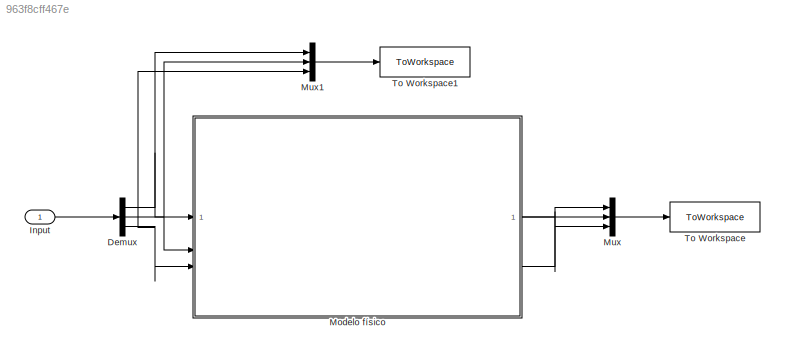
MODEL slx_963f8cff467e
KIND model
CONFIG AbsTol = auto
CONFIG EnableMultiTasking = off
CONFIG FixedStep = auto
CONFIG MaxStep = auto
CONFIG MinStep = auto
CONFIG RelTol = 1e-3
CONFIG SampleTimeConstraint = Unconstrained
CONFIG SolverName = VariableStepAuto
CONFIG StartTime = 0.0
CONFIG StopTime = sim_end_time
BLOCK [Demux] Demux
  Outputs = 3
BLOCK [Inport] Input
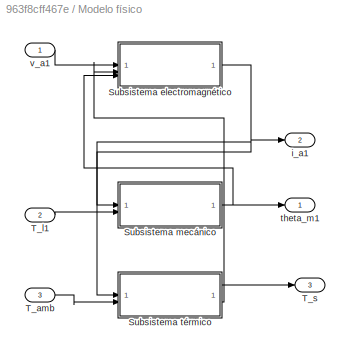
BLOCK [SubSystem] Modelo físico
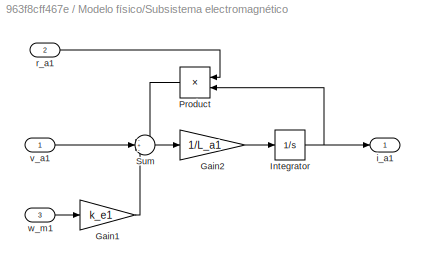
BLOCK [SubSystem] Modelo físico/Subsistema electromagnético
BLOCK [Gain] Modelo físico/Subsistema electromagnético/Gain1
  Gain = k_e1
BLOCK [Gain] Modelo físico/Subsistema electromagnético/Gain2
  Gain = 1/L_a1
BLOCK [Integrator] Modelo físico/Subsistema electromagnético/Integrator
BLOCK [Product] Modelo físico/Subsistema electromagnético/Product
  NameLocation = top
BLOCK [Sum] Modelo físico/Subsistema electromagnético/Sum
  Inputs = -+-
BLOCK [Outport] Modelo físico/Subsistema electromagnético/i_a1
BLOCK [Inport] Modelo físico/Subsistema electromagnético/r_a1
  Port = 2
BLOCK [Inport] Modelo físico/Subsistema electromagnético/v_a1
BLOCK [Inport] Modelo físico/Subsistema electromagnético/w_m1
  Port = 3
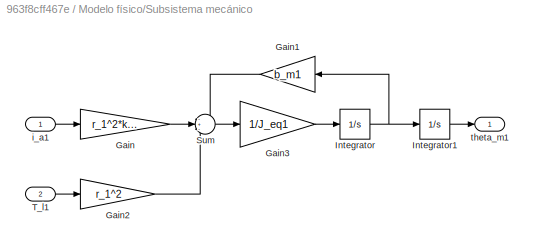
BLOCK [SubSystem] Modelo físico/Subsistema mecánico
BLOCK [Gain] Modelo físico/Subsistema mecánico/Gain
  Gain = r_1^2*k_t1
BLOCK [Gain] Modelo físico/Subsistema mecánico/Gain1
  Gain = b_m1
  NameLocation = top
BLOCK [Gain] Modelo físico/Subsistema mecánico/Gain2
  Gain = r_1^2
BLOCK [Gain] Modelo físico/Subsistema mecánico/Gain3
  Gain = 1/J_eq1
BLOCK [Integrator] Modelo físico/Subsistema mecánico/Integrator
BLOCK [Integrator] Modelo físico/Subsistema mecánico/Integrator1
  InitialCondition = theta_m1_0
BLOCK [Sum] Modelo físico/Subsistema mecánico/Sum
  Inputs = -+-
BLOCK [Inport] Modelo físico/Subsistema mecánico/T_l1
  Port = 2
BLOCK [Inport] Modelo físico/Subsistema mecánico/i_a1
BLOCK [Outport] Modelo físico/Subsistema mecánico/theta_m1
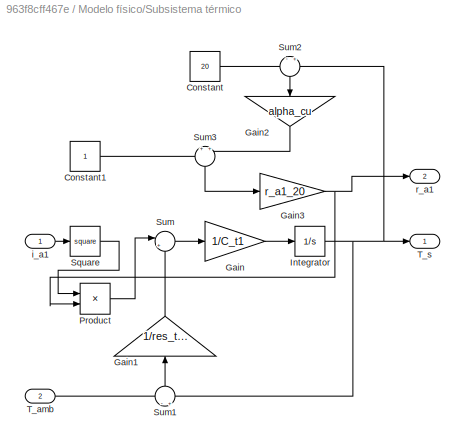
BLOCK [SubSystem] Modelo físico/Subsistema térmico
BLOCK [Constant] Modelo físico/Subsistema térmico/Constant
  Value = 20
BLOCK [Constant] Modelo físico/Subsistema térmico/Constant1
BLOCK [Gain] Modelo físico/Subsistema térmico/Gain
  Gain = 1/C_t1
BLOCK [Gain] Modelo físico/Subsistema térmico/Gain1
  Gain = 1/res_term_1
  NameLocation = right
BLOCK [Gain] Modelo físico/Subsistema térmico/Gain2
  Gain = alpha_cu
  NameLocation = left
BLOCK [Gain] Modelo físico/Subsistema térmico/Gain3
  Gain = r_a1_20
BLOCK [Integrator] Modelo físico/Subsistema térmico/Integrator
BLOCK [Product] Modelo físico/Subsistema térmico/Product
BLOCK [Math] Modelo físico/Subsistema térmico/Square
  Operator = square
BLOCK [Sum] Modelo físico/Subsistema térmico/Sum
  Inputs = |+-
BLOCK [Sum] Modelo físico/Subsistema térmico/Sum1
  Inputs = -|+
  NameLocation = right
BLOCK [Sum] Modelo físico/Subsistema térmico/Sum2
  Inputs = -|+
  NameLocation = left
BLOCK [Sum] Modelo físico/Subsistema térmico/Sum3
  Inputs = +|+
  NameLocation = left
BLOCK [Inport] Modelo físico/Subsistema térmico/T_amb
  Port = 2
BLOCK [Outport] Modelo físico/Subsistema térmico/T_s
BLOCK [Inport] Modelo físico/Subsistema térmico/i_a1
BLOCK [Outport] Modelo físico/Subsistema térmico/r_a1
  Port = 2
BLOCK [Inport] Modelo físico/T_amb
  Port = 3
BLOCK [Inport] Modelo físico/T_l1
  Port = 2
BLOCK [Outport] Modelo físico/T_s
  Port = 3
BLOCK [Outport] Modelo físico/i_a1
  Port = 2
BLOCK [Outport] Modelo físico/theta_m1
BLOCK [Inport] Modelo físico/v_a1
BLOCK [Mux] Mux
  DisplayOption = bar
  Inputs = 3
BLOCK [Mux] Mux1
  DisplayOption = bar
  Inputs = 3
BLOCK [ToWorkspace] To Workspace
  FixptAsFi = on
  MaxDataPoints = inf
  SampleTime = -1
  SaveFormat = Timeseries
  VariableName = simulationOut
BLOCK [ToWorkspace] To Workspace1
  FixptAsFi = on
  MaxDataPoints = inf
  SampleTime = -1
  SaveFormat = Timeseries
  VariableName = simulationIn
NET Demux:1 -> Modelo físico:1, Mux1:1
NET Demux:2 -> Modelo físico:2, Mux1:2
NET Demux:3 -> Modelo físico:3, Mux1:3
LINE Input:1 -> Demux:1
LINE Modelo físico/Subsistema electromagnético/Gain1:1 -> Modelo físico/Subsistema electromagnético/Sum:3
LINE Modelo físico/Subsistema electromagnético/Gain2:1 -> Modelo físico/Subsistema electromagnético/Integrator:1
NET Modelo físico/Subsistema electromagnético/Integrator:1 -> Modelo físico/Subsistema electromagnético/Product:2, Modelo físico/Subsistema electromagnético/i_a1:1
LINE Modelo físico/Subsistema electromagnético/Product:1 -> Modelo físico/Subsistema electromagnético/Sum:1
LINE Modelo físico/Subsistema electromagnético/Sum:1 -> Modelo físico/Subsistema electromagnético/Gain2:1
LINE Modelo físico/Subsistema electromagnético/r_a1:1 -> Modelo físico/Subsistema electromagnético/Product:1
LINE Modelo físico/Subsistema electromagnético/v_a1:1 -> Modelo físico/Subsistema electromagnético/Sum:2
LINE Modelo físico/Subsistema electromagnético/w_m1:1 -> Modelo físico/Subsistema electromagnético/Gain1:1
NET Modelo físico/Subsistema electromagnético:1 -> Modelo físico/Subsistema mecánico:1, Modelo físico/Subsistema térmico:1, Modelo físico/i_a1:1
LINE Modelo físico/Subsistema mecánico/Gain1:1 -> Modelo físico/Subsistema mecánico/Sum:1
LINE Modelo físico/Subsistema mecánico/Gain2:1 -> Modelo físico/Subsistema mecánico/Sum:3
LINE Modelo físico/Subsistema mecánico/Gain3:1 -> Modelo físico/Subsistema mecánico/Integrator:1
LINE Modelo físico/Subsistema mecánico/Gain:1 -> Modelo físico/Subsistema mecánico/Sum:2
LINE Modelo físico/Subsistema mecánico/Integrator1:1 -> Modelo físico/Subsistema mecánico/theta_m1:1
NET Modelo físico/Subsistema mecánico/Integrator:1 -> Modelo físico/Subsistema mecánico/Gain1:1, Modelo físico/Subsistema mecánico/Integrator1:1
LINE Modelo físico/Subsistema mecánico/Sum:1 -> Modelo físico/Subsistema mecánico/Gain3:1
LINE Modelo físico/Subsistema mecánico/T_l1:1 -> Modelo físico/Subsistema mecánico/Gain2:1
LINE Modelo físico/Subsistema mecánico/i_a1:1 -> Modelo físico/Subsistema mecánico/Gain:1
NET Modelo físico/Subsistema mecánico:1 -> Modelo físico/Subsistema electromagnético:3, Modelo físico/theta_m1:1
LINE Modelo físico/Subsistema térmico/Constant1:1 -> Modelo físico/Subsistema térmico/Sum3:1
LINE Modelo físico/Subsistema térmico/Constant:1 -> Modelo físico/Subsistema térmico/Sum2:1
LINE Modelo físico/Subsistema térmico/Gain1:1 -> Modelo físico/Subsistema térmico/Sum:2
LINE Modelo físico/Subsistema térmico/Gain2:1 -> Modelo físico/Subsistema térmico/Sum3:2
NET Modelo físico/Subsistema térmico/Gain3:1 -> Modelo físico/Subsistema térmico/Product:2, Modelo físico/Subsistema térmico/r_a1:1
LINE Modelo físico/Subsistema térmico/Gain:1 -> Modelo físico/Subsistema térmico/Integrator:1
NET Modelo físico/Subsistema térmico/Integrator:1 -> Modelo físico/Subsistema térmico/Sum1:2, Modelo físico/Subsistema térmico/Sum2:2, Modelo físico/Subsistema térmico/T_s:1
LINE Modelo físico/Subsistema térmico/Product:1 -> Modelo físico/Subsistema térmico/Sum:1
LINE Modelo físico/Subsistema térmico/Square:1 -> Modelo físico/Subsistema térmico/Product:1
LINE Modelo físico/Subsistema térmico/Sum1:1 -> Modelo físico/Subsistema térmico/Gain1:1
LINE Modelo físico/Subsistema térmico/Sum2:1 -> Modelo físico/Subsistema térmico/Gain2:1
LINE Modelo físico/Subsistema térmico/Sum3:1 -> Modelo físico/Subsistema térmico/Gain3:1
LINE Modelo físico/Subsistema térmico/Sum:1 -> Modelo físico/Subsistema térmico/Gain:1
LINE Modelo físico/Subsistema térmico/T_amb:1 -> Modelo físico/Subsistema térmico/Sum1:1
LINE Modelo físico/Subsistema térmico/i_a1:1 -> Modelo físico/Subsistema térmico/Square:1
LINE Modelo físico/Subsistema térmico:1 -> Modelo físico/T_s:1
LINE Modelo físico/Subsistema térmico:2 -> Modelo físico/Subsistema electromagnético:2
LINE Modelo físico/T_amb:1 -> Modelo físico/Subsistema térmico:2
LINE Modelo físico/T_l1:1 -> Modelo físico/Subsistema mecánico:2
LINE Modelo físico/v_a1:1 -> Modelo físico/Subsistema electromagnético:1
LINE Modelo físico:1 -> Mux:1
LINE Modelo físico:2 -> Mux:2
LINE Modelo físico:3 -> Mux:3
LINE Mux1:1 -> To Workspace1:1
LINE Mux:1 -> To Workspace:1
note: NET lines group one-source signal fan-out (src -> all destinations, sorted); 1:1 wires keep LINE
